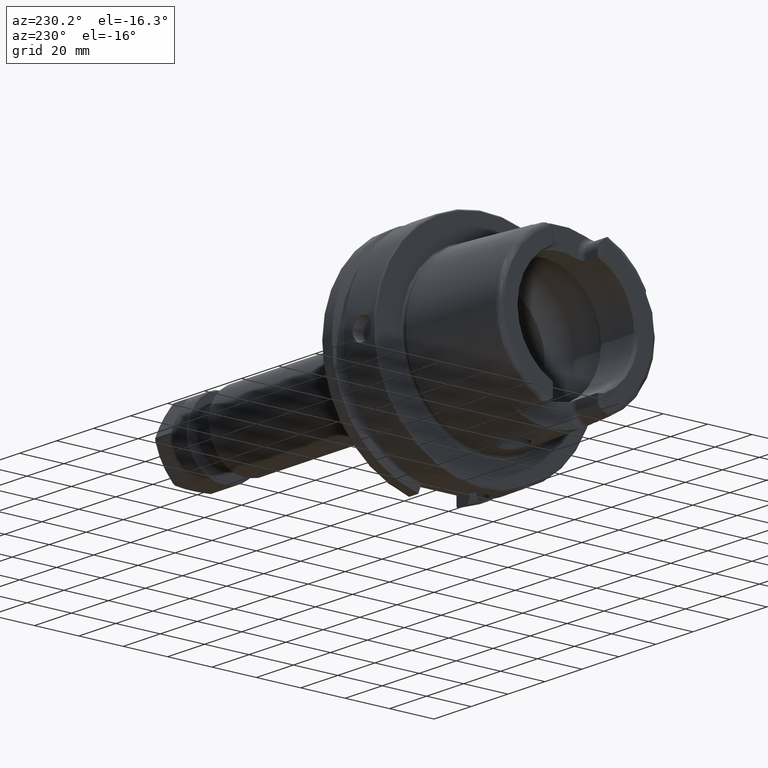
[diagram: clean part render]
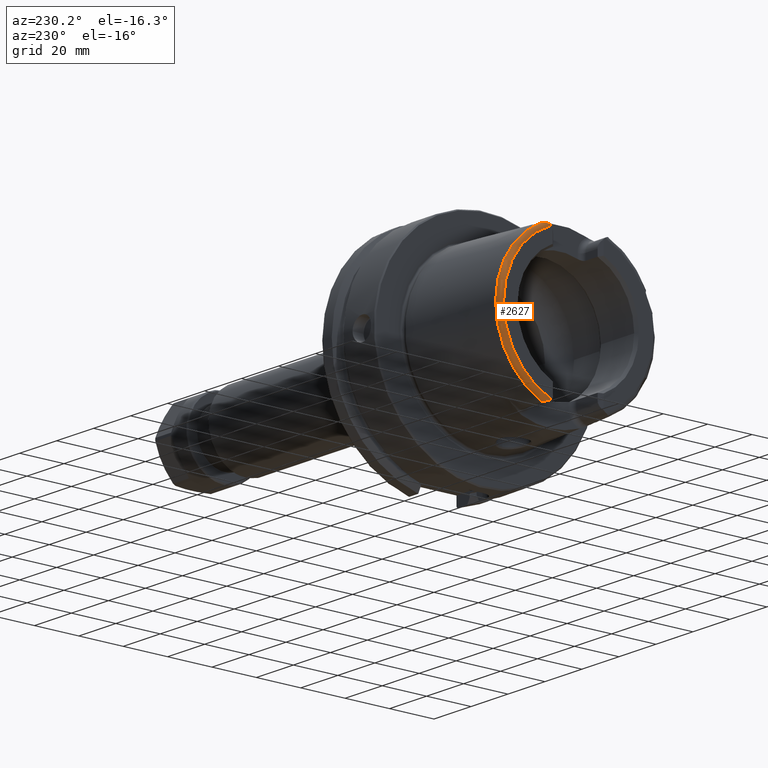
[diagram: same view with one face highlighted and labeled with its STEP entity id]
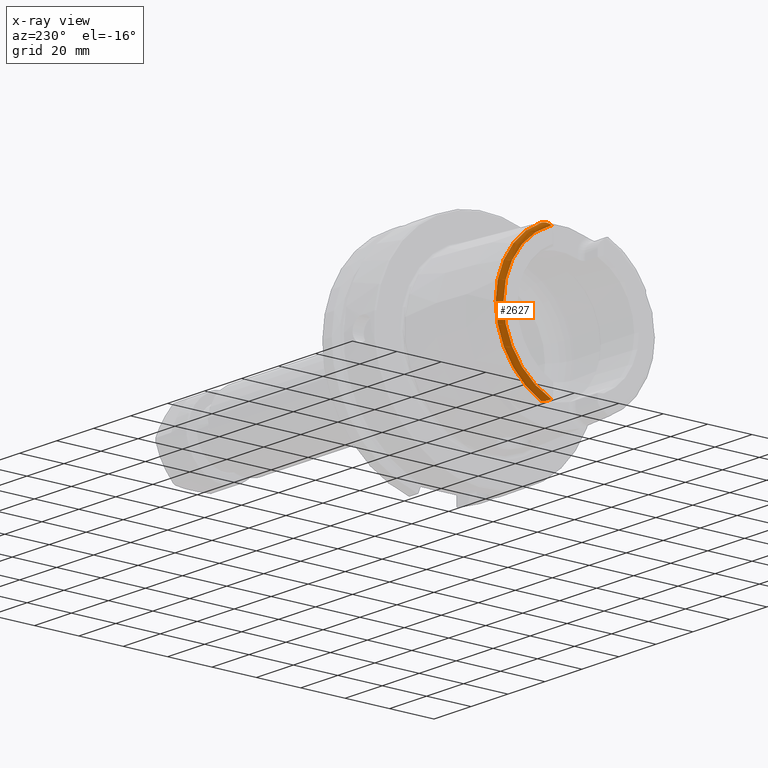
[diagram: x-ray of the same camera — body ghosted, the highlighted face saturated]
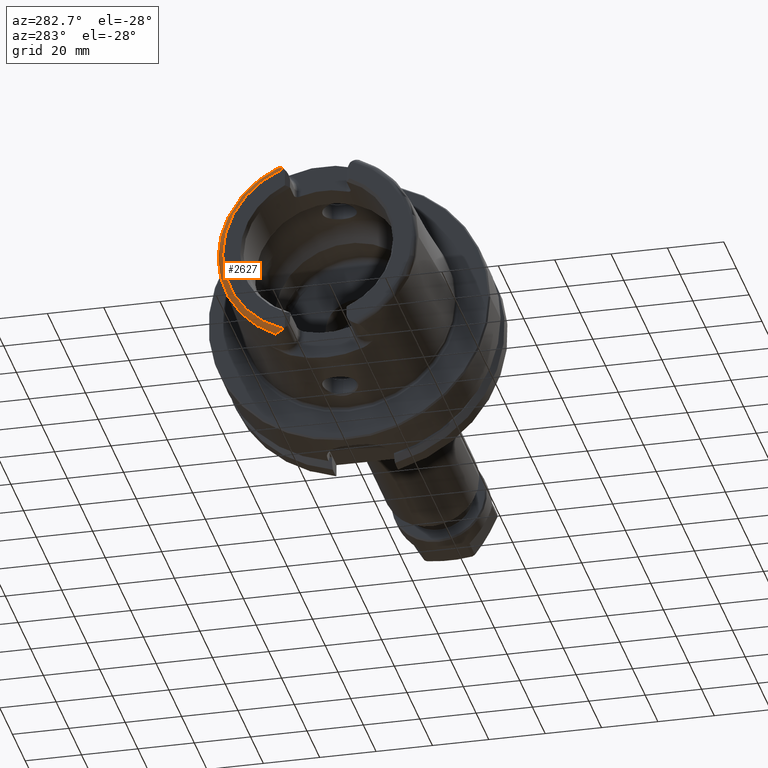
[diagram: same view with one face highlighted and labeled with its STEP entity id]
A machine part, auxiliary view. The second image highlights one B-rep face of the part: STEP entity #2627.
The next image is the same camera in x-ray: the body ghosted, the highlighted face saturated — about 0% of this face is hidden behind the body in this view.
A second angle (auxiliary view) of the same face is appended — the face is thin or edge-on in the first view.
In plain terms, the highlighted toroidal blend (fillet) surface has major radius 33.6002 mm and minor (blend) radius 2 mm.
Its self-contained STEP definition (entity closure, byte-faithful):
#84=B_SPLINE_CURVE_WITH_KNOTS('',3,(#4059,#4060,#4061,#4062,#4063,#4064,
#4065,#4066,#4067,#4068,#4069,#4070),.UNSPECIFIED.,.F.,.F.,(4,2,2,2,2,4),
(-0.744485085130371,-0.701284148098642,-0.656581713087942,-0.531183195108755,
-0.406814905045421,-0.32076786300396),.UNSPECIFIED.);
#91=B_SPLINE_CURVE_WITH_KNOTS('',3,(#4215,#4216,#4217,#4218,#4219,#4220,
#4221,#4222,#4223,#4224,#4225,#4226),.UNSPECIFIED.,.F.,.F.,(4,2,2,2,2,4),
(-0.330492941280221,-0.267730672592689,-0.159783637268103,-0.0785649842435394,
-0.0319753598823862,-6.79221864796145E-5),.UNSPECIFIED.);
#251=TOROIDAL_SURFACE('',#2976,33.6001839277785,2.);
#375=FACE_OUTER_BOUND('',#536,.T.);
#536=EDGE_LOOP('',(#2232,#2233,#2234,#2235));
#924=CIRCLE('',#2853,35.5976786130245);
#987=CIRCLE('',#2975,33.6001839277785);
#1091=VERTEX_POINT('',#4056);
#1092=VERTEX_POINT('',#4058);
#1122=VERTEX_POINT('',#4205);
#1123=VERTEX_POINT('',#4214);
#1367=EDGE_CURVE('',#1092,#1091,#84,.T.);
#1403=EDGE_CURVE('',#1123,#1122,#91,.T.);
#1421=EDGE_CURVE('',#1092,#1122,#924,.T.);
#1591=EDGE_CURVE('',#1091,#1123,#987,.T.);
#2232=ORIENTED_EDGE('',*,*,#1403,.T.);
#2233=ORIENTED_EDGE('',*,*,#1421,.F.);
#2234=ORIENTED_EDGE('',*,*,#1367,.T.);
#2235=ORIENTED_EDGE('',*,*,#1591,.T.);
#2627=ADVANCED_FACE('',(#375),#251,.T.);
#2853=AXIS2_PLACEMENT_3D('',#4463,#3333,#3334);
#2975=AXIS2_PLACEMENT_3D('',#5378,#3633,#3634);
#2976=AXIS2_PLACEMENT_3D('',#5379,#3635,#3636);
#3333=DIRECTION('center_axis',(1.,0.,0.));
#3334=DIRECTION('ref_axis',(0.,0.,-1.));
#3633=DIRECTION('center_axis',(1.,0.,0.));
#3634=DIRECTION('ref_axis',(0.,0.,-1.));
#3635=DIRECTION('center_axis',(1.,0.,0.));
#3636=DIRECTION('ref_axis',(0.,0.,-1.));
#4056=CARTESIAN_POINT('',(-50.,12.0743049948301,-31.355757348091));
#4058=CARTESIAN_POINT('',(-48.1000748840304,15.0787152148571,-32.2463497175327));
#4059=CARTESIAN_POINT('Ctrl Pts',(-48.1000748840304,15.0787152148571,-32.2463497175327));
#4060=CARTESIAN_POINT('Ctrl Pts',(-48.2105289331959,15.0644723890649,-32.2469009162952));
#4061=CARTESIAN_POINT('Ctrl Pts',(-48.3152849211513,15.0274043790922,-32.2483365520296));
#4062=CARTESIAN_POINT('Ctrl Pts',(-48.5158350355592,14.9227249886344,-32.2501807122049));
#4063=CARTESIAN_POINT('Ctrl Pts',(-48.6114759122292,14.8539486337751,-32.2504380099703));
#4064=CARTESIAN_POINT('Ctrl Pts',(-48.9444340259589,14.5699075364914,-32.2439932048825));
#4065=CARTESIAN_POINT('Ctrl Pts',(-49.1873237794489,14.2618237213855,-32.2229124522755));
#4066=CARTESIAN_POINT('Ctrl Pts',(-49.6096022065355,13.5557805634606,-32.0777680620402));
#4067=CARTESIAN_POINT('Ctrl Pts',(-49.7790094341757,13.1775605707035,-31.9575317726829));
#4068=CARTESIAN_POINT('Ctrl Pts',(-49.9573633441756,12.558596693048,-31.6661869684752));
#4069=CARTESIAN_POINT('Ctrl Pts',(-50.,12.3094122367882,-31.5218463066117));
#4070=CARTESIAN_POINT('Ctrl Pts',(-50.,12.0743049948301,-31.355757348091));
#4205=CARTESIAN_POINT('',(-48.1000748840304,15.0787152148571,32.2463497175327));
#4214=CARTESIAN_POINT('',(-50.,12.0743049948301,31.355757348091));
#4215=CARTESIAN_POINT('Ctrl Pts',(-50.,12.0743049948301,31.355757348091));
#4216=CARTESIAN_POINT('Ctrl Pts',(-50.,12.2864160042029,31.5056008677721));
#4217=CARTESIAN_POINT('Ctrl Pts',(-49.9651812414519,12.5182840828269,31.6438016135977));
#4218=CARTESIAN_POINT('Ctrl Pts',(-49.7800952926341,13.1934814711232,31.9701190766009));
#4219=CARTESIAN_POINT('Ctrl Pts',(-49.5793805506894,13.6220310736951,32.0976134655659));
#4220=CARTESIAN_POINT('Ctrl Pts',(-49.170216000735,14.2749893309021,32.2194840260055));
#4221=CARTESIAN_POINT('Ctrl Pts',(-48.9762638716763,14.5215824129495,32.2396097025416));
#4222=CARTESIAN_POINT('Ctrl Pts',(-48.6666306582889,14.8133702905837,32.2505591140316));
#4223=CARTESIAN_POINT('Ctrl Pts',(-48.5389792055843,14.9127554064334,32.2504492219699));
#4224=CARTESIAN_POINT('Ctrl Pts',(-48.3058528414878,15.0307034754738,32.2482068363322));
#4225=CARTESIAN_POINT('Ctrl Pts',(-48.2055479344945,15.0651146787529,32.2468760596209));
#4226=CARTESIAN_POINT('Ctrl Pts',(-48.1000748840303,15.0787152148571,32.2463497175327));
#4463=CARTESIAN_POINT('Origin',(-48.1000748840304,0.,0.));
#5378=CARTESIAN_POINT('Origin',(-50.,0.,0.));
#5379=CARTESIAN_POINT('Origin',(-48.,0.,0.));